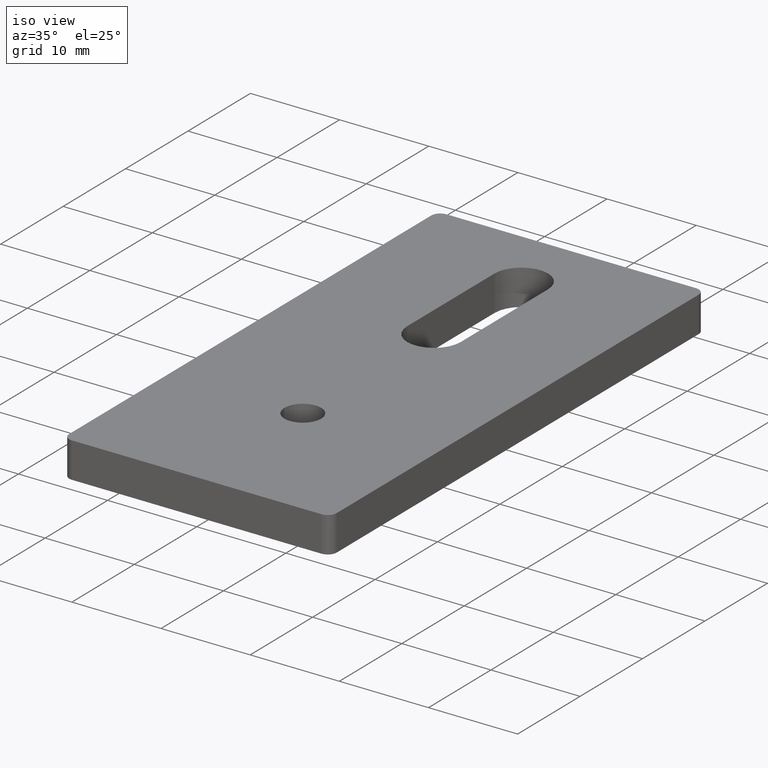
[diagram: clean part render]
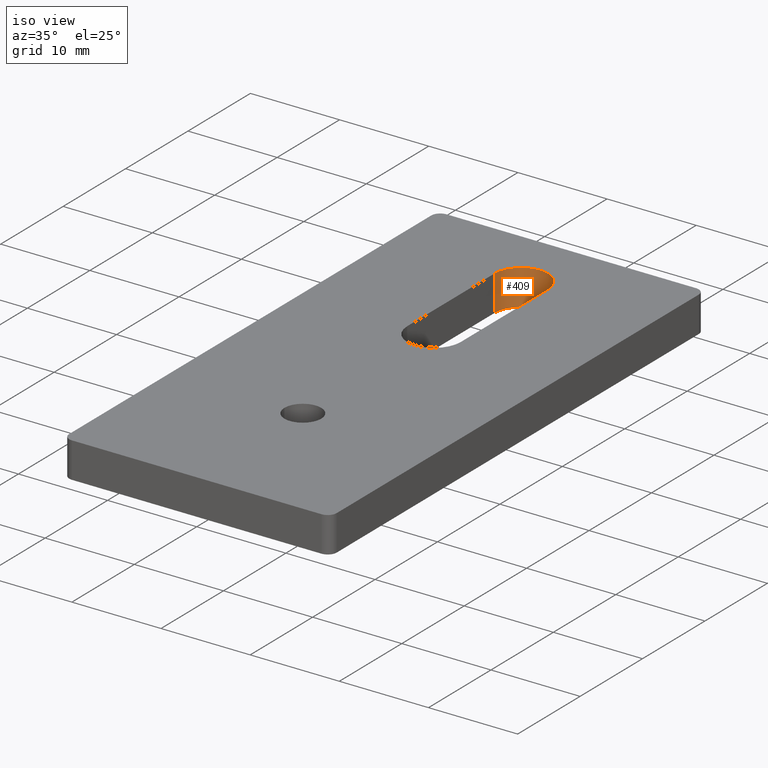
[diagram: same view with one face highlighted and labeled with its STEP entity id]
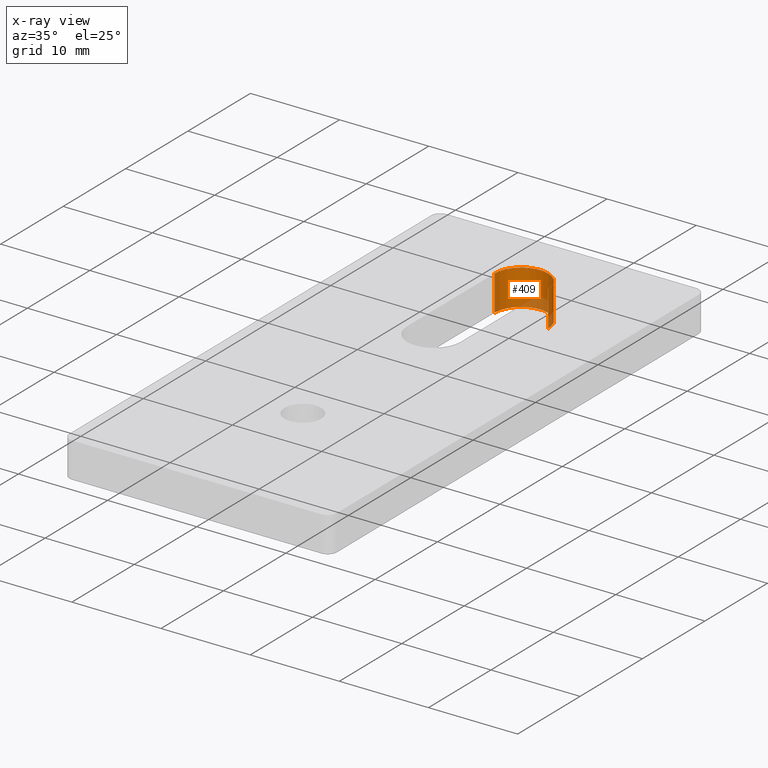
[diagram: x-ray of the same camera — body ghosted, the highlighted face saturated]
A machine part, iso view. The second image highlights one B-rep face of the part: STEP entity #409.
The next image is the same camera in x-ray: the body ghosted, the highlighted face saturated — about 13% of this face is hidden behind the body in this view.
In plain terms, the highlighted cylindrical surface (edge-blend (fillet) strip) has radius 3 mm, axis along (0, 0, 1).
Its self-contained STEP definition (entity closure, byte-faithful):
#253=CARTESIAN_POINT('',(3.0,51.999999999999993,4.0));
#254=VERTEX_POINT('',#253);
#255=CARTESIAN_POINT('',(-3.000000000000007,51.999999999999993,4.0));
#256=VERTEX_POINT('',#255);
#257=CARTESIAN_POINT('',(0.0,51.999999999999993,4.0));
#258=DIRECTION('',(0.0,0.0,1.0));
#259=DIRECTION('',(0.0,-1.0,0.0));
#260=AXIS2_PLACEMENT_3D('',#257,#258,#259);
#261=CIRCLE('',#260,3.000000000000002);
#262=EDGE_CURVE('',#254,#256,#261,.T.);
#341=CARTESIAN_POINT('',(3.0,51.999999999999993,0.0));
#342=VERTEX_POINT('',#341);
#349=CARTESIAN_POINT('',(-3.000000000000007,51.999999999999993,0.0));
#350=VERTEX_POINT('',#349);
#351=CARTESIAN_POINT('',(0.0,51.999999999999993,0.0));
#352=DIRECTION('',(0.0,0.0,1.0));
#353=DIRECTION('',(1.0,0.0,0.0));
#354=AXIS2_PLACEMENT_3D('',#351,#352,#353);
#355=CIRCLE('',#354,3.000000000000002);
#356=EDGE_CURVE('',#342,#350,#355,.T.);
#388=CARTESIAN_POINT('',(7.105427E-015,51.999999999999993,-0.000000010000001));
#389=DIRECTION('',(0.0,0.0,1.0));
#390=DIRECTION('',(0.0,-1.0,0.0));
#391=AXIS2_PLACEMENT_3D('',#388,#389,#390);
#392=CYLINDRICAL_SURFACE('',#391,3.000000000000002);
#393=CARTESIAN_POINT('',(3.0,51.999999999999993,0.0));
#394=DIRECTION('',(0.0,0.0,1.0));
#395=VECTOR('',#394,4.0);
#396=LINE('',#393,#395);
#397=EDGE_CURVE('',#342,#254,#396,.T.);
#398=ORIENTED_EDGE('',*,*,#397,.T.);
#399=ORIENTED_EDGE('',*,*,#262,.T.);
#400=CARTESIAN_POINT('',(-3.000000000000007,51.999999999999993,0.0));
#401=DIRECTION('',(0.0,0.0,1.0));
#402=VECTOR('',#401,4.0);
#403=LINE('',#400,#402);
#404=EDGE_CURVE('',#350,#256,#403,.T.);
#405=ORIENTED_EDGE('',*,*,#404,.F.);
#406=ORIENTED_EDGE('',*,*,#356,.F.);
#407=EDGE_LOOP('',(#398,#399,#405,#406));
#408=FACE_OUTER_BOUND('',#407,.T.);
#409=ADVANCED_FACE('',(#408),#392,.F.);